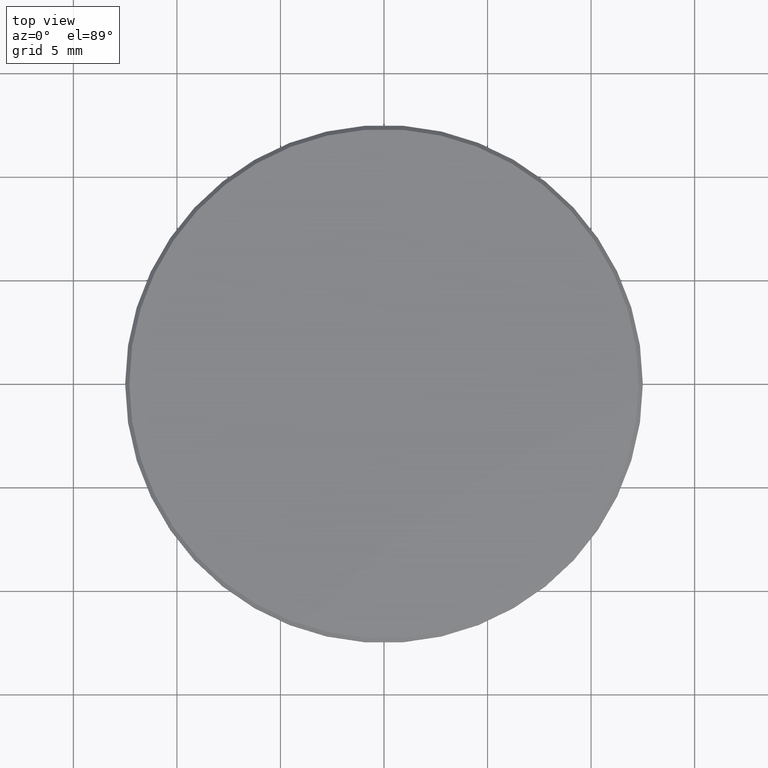
[diagram: clean part render]
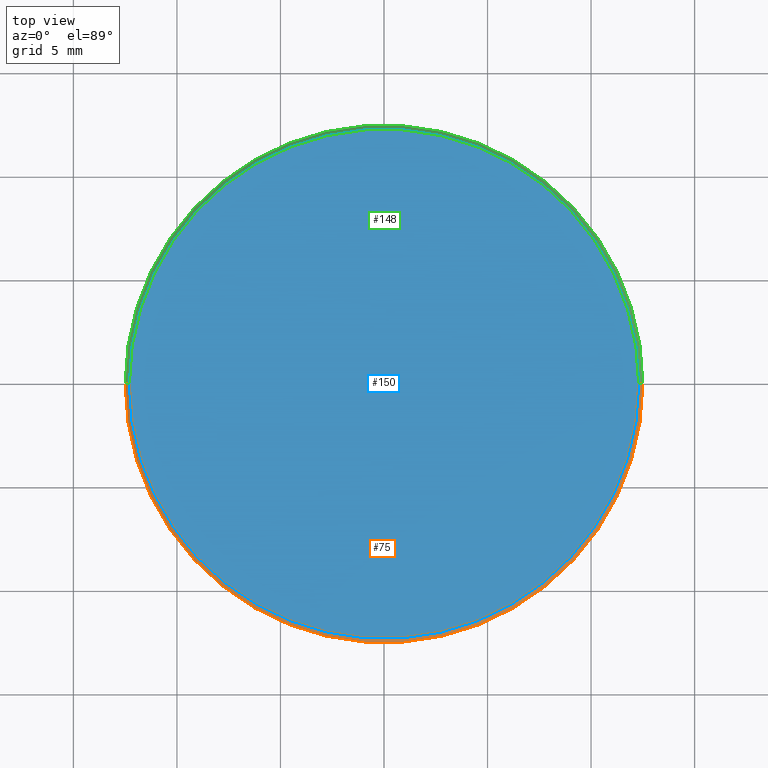
[diagram: same view with three faces highlighted in distinct colors, each labeled with its STEP entity id]
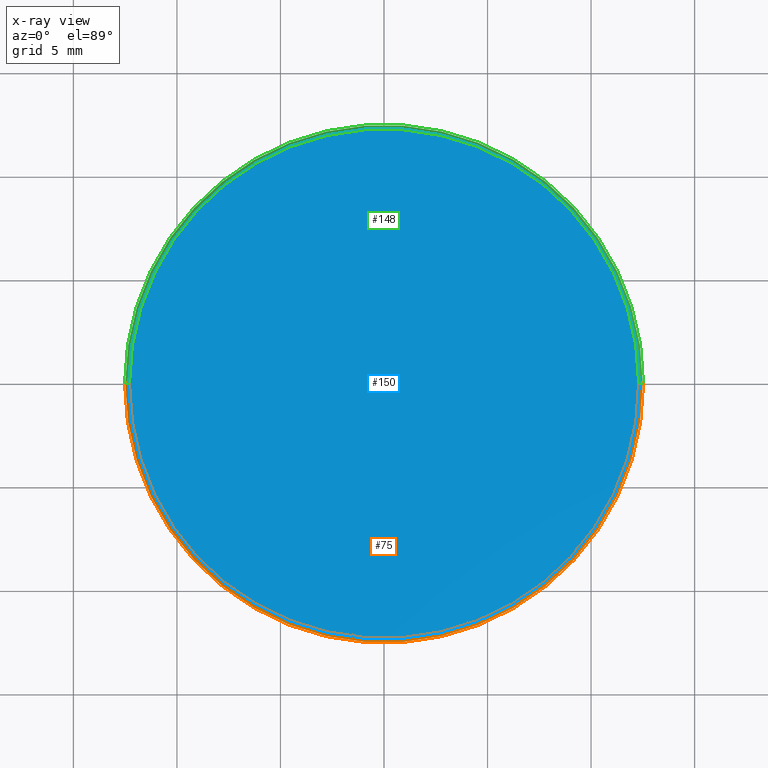
[diagram: x-ray of the same camera — body ghosted, the three highlighted faces saturated]
A machine part, top view with three faces highlighted in distinct colors.
The next image is the same camera in x-ray (body ghosted, the three faces saturated) — at least one of them is partly hidden behind the body in this view.
Their STEP definitions:

[orange] entity #75 — the highlighted conical surface has half-angle 45 deg.
#10 = ORIENTED_EDGE ( 'NONE', *, *, #109, .F. ) ;
#11 = EDGE_LOOP ( 'NONE', ( #214, #10, #230, #135 ) ) ;
#17 = DIRECTION ( 'NONE',  ( 0.000000000000000000, 0.000000000000000000, -1.000000000000000000 ) ) ;
#20 = CARTESIAN_POINT ( 'NONE',  ( 0.000000000000000000, 0.000000000000000000, 1.000000000000000000 ) ) ;
#25 = VERTEX_POINT ( 'NONE', #122 ) ;
#34 = EDGE_CURVE ( 'NONE', #25, #193, #70, .T. ) ;
#36 = DIRECTION ( 'NONE',  ( 1.000000000000000000, 0.000000000000000000, 0.000000000000000000 ) ) ;
#37 = CARTESIAN_POINT ( 'NONE',  ( 12.29999999999999893, 1.506315562951244216E-15, 1.000000000000000000 ) ) ;
#38 = CARTESIAN_POINT ( 'NONE',  ( 12.50000000000000000, 1.530808498934191521E-15, 0.8000000000000029310 ) ) ;
#40 = CONICAL_SURFACE ( 'NONE', #174, 12.29999999999999893, 0.7853981633974612686 ) ;
#45 = VERTEX_POINT ( 'NONE', #126 ) ;
#47 = EDGE_CURVE ( 'NONE', #87, #45, #235, .T. ) ;
#49 = DIRECTION ( 'NONE',  ( 0.000000000000000000, 0.000000000000000000, 1.000000000000000000 ) ) ;
#64 = CIRCLE ( 'NONE', #132, 12.29999999999999893 ) ;
#66 = EDGE_CURVE ( 'NONE', #193, #45, #86, .T. ) ;
#68 = VECTOR ( 'NONE', #107, 1000.000000000000000 ) ;
#70 = LINE ( 'NONE', #37, #68 ) ;
#73 = AXIS2_PLACEMENT_3D ( 'NONE', #195, #17, #36 ) ;
#75 = ADVANCED_FACE ( 'NONE', ( #204 ), #40, .T. ) ;
#86 = CIRCLE ( 'NONE', #73, 12.50000000000000000 ) ;
#87 = VERTEX_POINT ( 'NONE', #180 ) ;
#105 = DIRECTION ( 'NONE',  ( -0.7071067811865566766, 0.000000000000000000, -0.7071067811865383579 ) ) ;
#107 = DIRECTION ( 'NONE',  ( 0.7071067811865566766, 8.659560562355045024E-17, -0.7071067811865383579 ) ) ;
#109 = EDGE_CURVE ( 'NONE', #87, #25, #64, .T. ) ;
#122 = CARTESIAN_POINT ( 'NONE',  ( 12.29999999999999893, 1.518562030942717967E-15, 1.000000000000000000 ) ) ;
#126 = CARTESIAN_POINT ( 'NONE',  ( -12.50000000000000000, 0.000000000000000000, 0.8000000000000029310 ) ) ;
#132 = AXIS2_PLACEMENT_3D ( 'NONE', #238, #49, #217 ) ;
#135 = ORIENTED_EDGE ( 'NONE', *, *, #66, .F. ) ;
#174 = AXIS2_PLACEMENT_3D ( 'NONE', #20, #240, #216 ) ;
#180 = CARTESIAN_POINT ( 'NONE',  ( -12.29999999999999893, 0.000000000000000000, 1.000000000000000000 ) ) ;
#181 = CARTESIAN_POINT ( 'NONE',  ( -12.29999999999999893, 0.000000000000000000, 1.000000000000000000 ) ) ;
#193 = VERTEX_POINT ( 'NONE', #38 ) ;
#195 = CARTESIAN_POINT ( 'NONE',  ( 0.000000000000000000, 0.000000000000000000, 0.8000000000000029310 ) ) ;
#204 = FACE_OUTER_BOUND ( 'NONE', #11, .T. ) ;
#214 = ORIENTED_EDGE ( 'NONE', *, *, #34, .F. ) ;
#216 = DIRECTION ( 'NONE',  ( -1.000000000000000000, 0.000000000000000000, 0.000000000000000000 ) ) ;
#217 = DIRECTION ( 'NONE',  ( 1.000000000000000000, 0.000000000000000000, 0.000000000000000000 ) ) ;
#228 = VECTOR ( 'NONE', #105, 1000.000000000000000 ) ;
#230 = ORIENTED_EDGE ( 'NONE', *, *, #47, .T. ) ;
#235 = LINE ( 'NONE', #181, #228 ) ;
#238 = CARTESIAN_POINT ( 'NONE',  ( 0.000000000000000000, 0.000000000000000000, 1.000000000000000000 ) ) ;
#240 = DIRECTION ( 'NONE',  ( 0.000000000000000000, 0.000000000000000000, -1.000000000000000000 ) ) ;

[blue] entity #150 — the highlighted planar face has unit normal (0, 0, 1).
#14 = EDGE_LOOP ( 'NONE', ( #117, #114 ) ) ;
#15 = CARTESIAN_POINT ( 'NONE',  ( 0.000000000000000000, 0.000000000000000000, 1.000000000000000000 ) ) ;
#25 = VERTEX_POINT ( 'NONE', #122 ) ;
#49 = DIRECTION ( 'NONE',  ( 0.000000000000000000, 0.000000000000000000, 1.000000000000000000 ) ) ;
#50 = CARTESIAN_POINT ( 'NONE',  ( 0.000000000000000000, 0.000000000000000000, 1.000000000000000000 ) ) ;
#55 = FACE_OUTER_BOUND ( 'NONE', #14, .T. ) ;
#64 = CIRCLE ( 'NONE', #132, 12.29999999999999893 ) ;
#69 = DIRECTION ( 'NONE',  ( 0.000000000000000000, 0.000000000000000000, 1.000000000000000000 ) ) ;
#85 = AXIS2_PLACEMENT_3D ( 'NONE', #15, #69, #88 ) ;
#87 = VERTEX_POINT ( 'NONE', #180 ) ;
#88 = DIRECTION ( 'NONE',  ( 1.000000000000000000, 0.000000000000000000, -0.000000000000000000 ) ) ;
#109 = EDGE_CURVE ( 'NONE', #87, #25, #64, .T. ) ;
#114 = ORIENTED_EDGE ( 'NONE', *, *, #152, .T. ) ;
#117 = ORIENTED_EDGE ( 'NONE', *, *, #109, .T. ) ;
#121 = DIRECTION ( 'NONE',  ( 0.000000000000000000, 0.000000000000000000, 1.000000000000000000 ) ) ;
#122 = CARTESIAN_POINT ( 'NONE',  ( 12.29999999999999893, 1.518562030942717967E-15, 1.000000000000000000 ) ) ;
#132 = AXIS2_PLACEMENT_3D ( 'NONE', #238, #49, #217 ) ;
#137 = PLANE ( 'NONE',  #85 ) ;
#150 = ADVANCED_FACE ( 'NONE', ( #55 ), #137, .T. ) ;
#152 = EDGE_CURVE ( 'NONE', #25, #87, #178, .T. ) ;
#178 = CIRCLE ( 'NONE', #209, 12.29999999999999893 ) ;
#180 = CARTESIAN_POINT ( 'NONE',  ( -12.29999999999999893, 0.000000000000000000, 1.000000000000000000 ) ) ;
#196 = DIRECTION ( 'NONE',  ( 1.000000000000000000, 0.000000000000000000, 0.000000000000000000 ) ) ;
#209 = AXIS2_PLACEMENT_3D ( 'NONE', #50, #121, #196 ) ;
#217 = DIRECTION ( 'NONE',  ( 1.000000000000000000, 0.000000000000000000, 0.000000000000000000 ) ) ;
#238 = CARTESIAN_POINT ( 'NONE',  ( 0.000000000000000000, 0.000000000000000000, 1.000000000000000000 ) ) ;

[green] entity #148 — the highlighted conical surface has half-angle 45 deg.
#6 = AXIS2_PLACEMENT_3D ( 'NONE', #219, #32, #31 ) ;
#7 = CARTESIAN_POINT ( 'NONE',  ( 0.000000000000000000, 0.000000000000000000, 0.8000000000000029310 ) ) ;
#25 = VERTEX_POINT ( 'NONE', #122 ) ;
#31 = DIRECTION ( 'NONE',  ( -1.000000000000000000, 0.000000000000000000, 0.000000000000000000 ) ) ;
#32 = DIRECTION ( 'NONE',  ( 0.000000000000000000, 0.000000000000000000, -1.000000000000000000 ) ) ;
#34 = EDGE_CURVE ( 'NONE', #25, #193, #70, .T. ) ;
#37 = CARTESIAN_POINT ( 'NONE',  ( 12.29999999999999893, 1.506315562951244216E-15, 1.000000000000000000 ) ) ;
#38 = CARTESIAN_POINT ( 'NONE',  ( 12.50000000000000000, 1.530808498934191521E-15, 0.8000000000000029310 ) ) ;
#45 = VERTEX_POINT ( 'NONE', #126 ) ;
#47 = EDGE_CURVE ( 'NONE', #87, #45, #235, .T. ) ;
#50 = CARTESIAN_POINT ( 'NONE',  ( 0.000000000000000000, 0.000000000000000000, 1.000000000000000000 ) ) ;
#63 = AXIS2_PLACEMENT_3D ( 'NONE', #7, #149, #208 ) ;
#68 = VECTOR ( 'NONE', #107, 1000.000000000000000 ) ;
#70 = LINE ( 'NONE', #37, #68 ) ;
#72 = FACE_OUTER_BOUND ( 'NONE', #83, .T. ) ;
#81 = ORIENTED_EDGE ( 'NONE', *, *, #47, .F. ) ;
#83 = EDGE_LOOP ( 'NONE', ( #225, #155, #134, #81 ) ) ;
#87 = VERTEX_POINT ( 'NONE', #180 ) ;
#105 = DIRECTION ( 'NONE',  ( -0.7071067811865566766, 0.000000000000000000, -0.7071067811865383579 ) ) ;
#107 = DIRECTION ( 'NONE',  ( 0.7071067811865566766, 8.659560562355045024E-17, -0.7071067811865383579 ) ) ;
#121 = DIRECTION ( 'NONE',  ( 0.000000000000000000, 0.000000000000000000, 1.000000000000000000 ) ) ;
#122 = CARTESIAN_POINT ( 'NONE',  ( 12.29999999999999893, 1.518562030942717967E-15, 1.000000000000000000 ) ) ;
#126 = CARTESIAN_POINT ( 'NONE',  ( -12.50000000000000000, 0.000000000000000000, 0.8000000000000029310 ) ) ;
#134 = ORIENTED_EDGE ( 'NONE', *, *, #188, .F. ) ;
#148 = ADVANCED_FACE ( 'NONE', ( #72 ), #183, .T. ) ;
#149 = DIRECTION ( 'NONE',  ( 0.000000000000000000, 0.000000000000000000, -1.000000000000000000 ) ) ;
#152 = EDGE_CURVE ( 'NONE', #25, #87, #178, .T. ) ;
#155 = ORIENTED_EDGE ( 'NONE', *, *, #34, .T. ) ;
#165 = CIRCLE ( 'NONE', #63, 12.50000000000000000 ) ;
#178 = CIRCLE ( 'NONE', #209, 12.29999999999999893 ) ;
#180 = CARTESIAN_POINT ( 'NONE',  ( -12.29999999999999893, 0.000000000000000000, 1.000000000000000000 ) ) ;
#181 = CARTESIAN_POINT ( 'NONE',  ( -12.29999999999999893, 0.000000000000000000, 1.000000000000000000 ) ) ;
#183 = CONICAL_SURFACE ( 'NONE', #6, 12.29999999999999893, 0.7853981633974612686 ) ;
#188 = EDGE_CURVE ( 'NONE', #45, #193, #165, .T. ) ;
#193 = VERTEX_POINT ( 'NONE', #38 ) ;
#196 = DIRECTION ( 'NONE',  ( 1.000000000000000000, 0.000000000000000000, 0.000000000000000000 ) ) ;
#208 = DIRECTION ( 'NONE',  ( 1.000000000000000000, 0.000000000000000000, 0.000000000000000000 ) ) ;
#209 = AXIS2_PLACEMENT_3D ( 'NONE', #50, #121, #196 ) ;
#219 = CARTESIAN_POINT ( 'NONE',  ( 0.000000000000000000, 0.000000000000000000, 1.000000000000000000 ) ) ;
#225 = ORIENTED_EDGE ( 'NONE', *, *, #152, .F. ) ;
#228 = VECTOR ( 'NONE', #105, 1000.000000000000000 ) ;
#235 = LINE ( 'NONE', #181, #228 ) ;